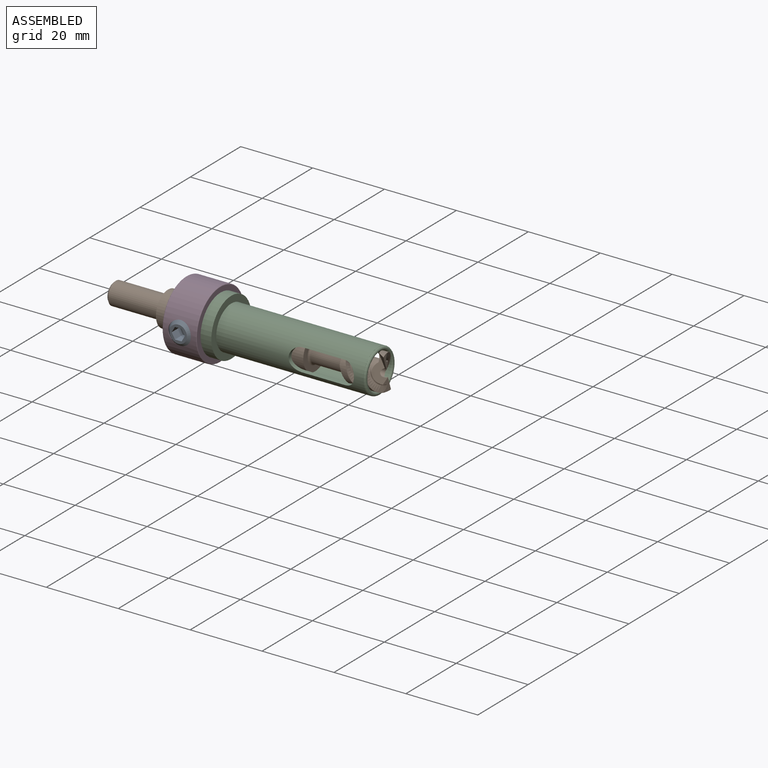
[diagram: assembled view]
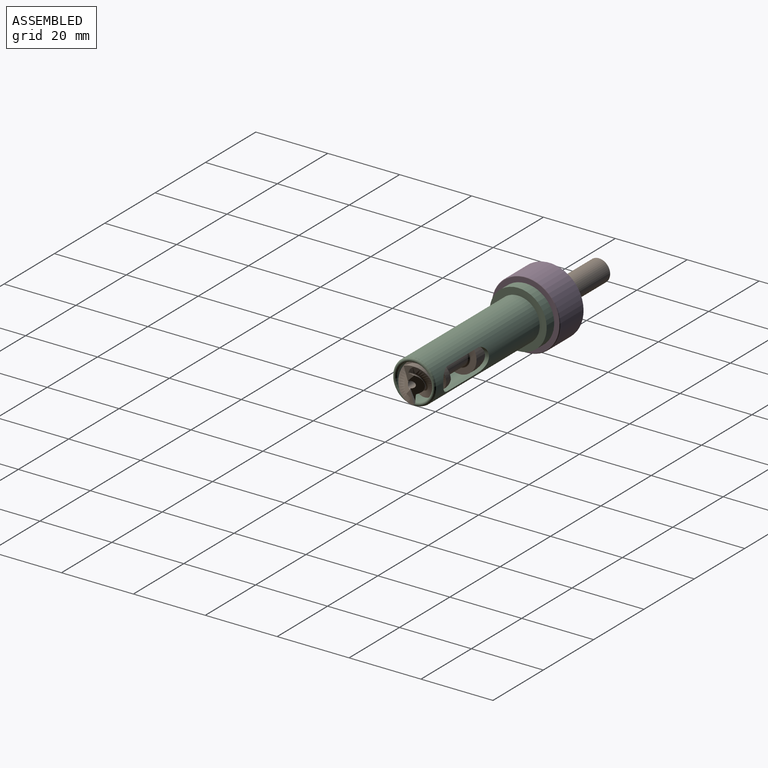
[diagram: assembled view, second angle]
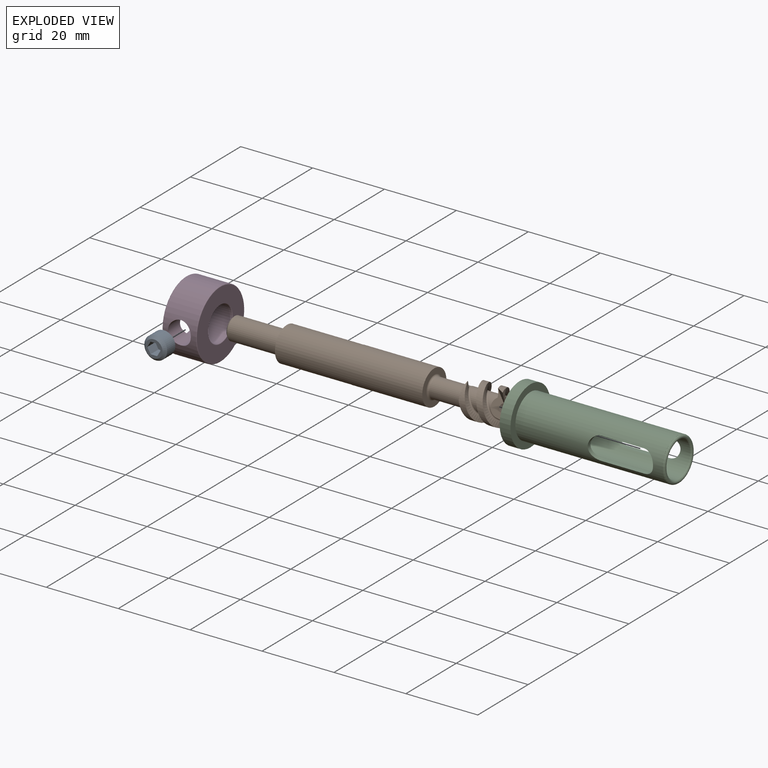
[diagram: exploded view]
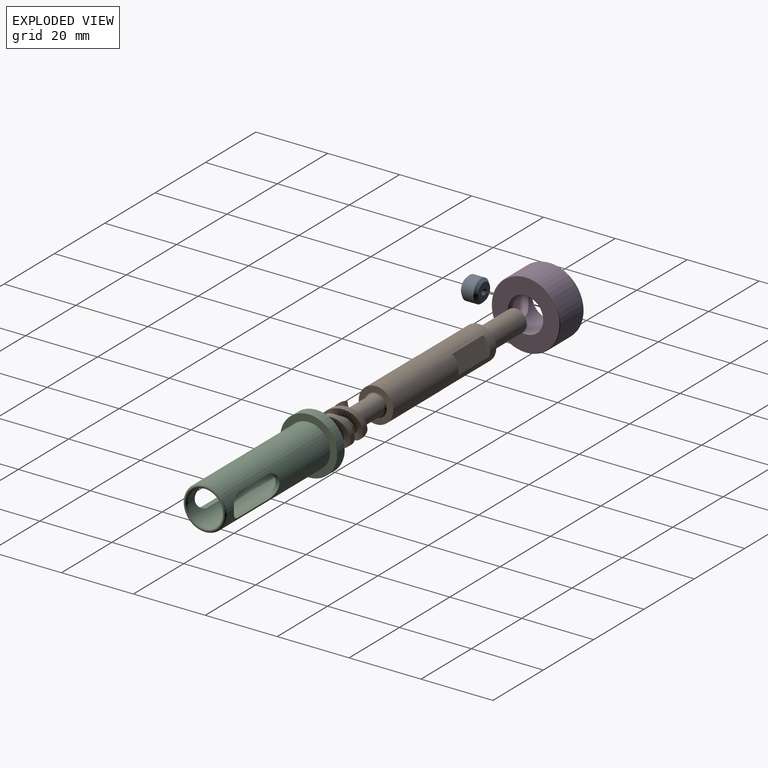
[diagram: exploded view, second angle]
ASSEMBLY  parts=4 mates=5
PART A: 13 faces, bbox 6.4x4.8x6.4 mm
  f0: plane 4.82x4.82mm, normal (0,1,0), area 9.5mm2, adj f1,f6,f7,f8,f9,f10,f11
  f1: cone r=2.41mm half-angle=45deg, axis (0,-1,0), area 19mm2, adj f0,f2
  f2: cylinder r=3.17mm len=6.35mm, axis (0,1,0), area 64.4mm2, adj f1,f3
  f3: cone r=3.17mm half-angle=45deg, axis (0,1,0), area 19mm2, adj f2,f4
  f4: plane 4.82x4.82mm, normal (0,-1,0), area 15.6mm2, adj f3,f5
  f5: cone r=0.92mm half-angle=45deg, axis (0,-1,0), area 3.8mm2, adj f4
  f6: plane 3.18x1.59mm, normal (-0.87,0,0.5), area 5.8mm2, adj f0,f7,f11,f12
  f7: plane 3.18x1.59mm, normal (-0.87,0,-0.5), area 5.8mm2, adj f0,f6,f8,f12
  f8: plane 3.18x1.83mm, normal (0,0,-1), area 5.8mm2, adj f0,f7,f9,f12
  f9: plane 3.18x1.59mm, normal (0.87,0,-0.5), area 5.8mm2, adj f0,f8,f10,f12
  f10: plane 3.18x1.59mm, normal (0.87,0,0.5), area 5.8mm2, adj f0,f9,f11,f12
  f11: plane 3.18x1.83mm, normal (0,0,1), area 5.8mm2, adj f0,f6,f10,f12
  f12: plane 3.67x3.18mm, normal (0,1,0), area 8.7mm2, adj f6,f7,f8,f9,f10,f11
PART B: 71 faces, bbox 77.1x9.8x9.8 mm
  f0: cylinder r=4.8mm len=21mm, axis (-1,0,0), area 633.3mm2, adj f22,f30
  f1: plane 9.53x9.53mm, normal (-1,0,0), area 41.2mm2, adj f14,f31
  f2: cylinder r=1.07mm len=75.99mm, axis (-1,0,0), area 507mm2, adj f3,f6,f13,f25,f26,f27
  f3: cylinder r=1.07mm len=0.54mm, axis (-1,0,0), area 0.1mm2, adj f2,f25,f26
  f4: cylinder r=4.8mm len=10mm, axis (-1,0,0), area 49.3mm2, adj f5,f9,f20,f27,f28
  f5: bspline ~10x9.6mm, area 37.8mm2, adj f4,f16,f20,f21,f26,f27
  f6: plane 7.2x3.17mm, normal (0.82,-0.53,0.23), area 12.6mm2, adj f2,f8,f11,f17,f25,f27,f28
  f7: cylinder r=4.8mm len=10mm, axis (-1,0,0), area 49.3mm2, adj f8,f10,f19,f25,f29
  f8: bspline ~10x9.6mm, area 37.8mm2, adj f6,f7,f17,f19,f21,f25
  f9: bspline ~11.25x9.6mm, area 44.9mm2, adj f4,f18,f20,f21,f28
  f10: bspline ~11.25x9.6mm, area 44.9mm2, adj f7,f15,f19,f21,f29
  f11: cylinder r=2.8mm len=9.83mm, axis (-1,0,0), area 37mm2, adj f6,f17,f18,f21,f28
  f12: cylinder r=2.8mm len=9.83mm, axis (-1,0,0), area 37mm2, adj f15,f16,f21,f26,f29
  f13: plane 5.2x5.2mm, normal (-1,0,0), area 17.6mm2, adj f2,f70
  f14: cylinder r=3.1mm len=14.5mm, axis (-1,0,0), area 282.4mm2, adj f1,f70
  f15: bspline ~10.75x6.1mm, area 7.9mm2, adj f10,f12,f21,f29
  f16: bspline ~9.11x6.1mm, area 6.7mm2, adj f5,f12,f21,f26
  f17: bspline ~9.11x6.1mm, area 6.7mm2, adj f6,f8,f11,f21
  f18: bspline ~10.75x6.1mm, area 7.9mm2, adj f9,f11,f21,f28
  f19: plane 4.02x3.92mm, normal (-1,0,0), area 7.2mm2, adj f7,f8,f10,f21
  f20: plane 4.02x3.92mm, normal (-1,0,0), area 7.2mm2, adj f4,f5,f9,f21
  f21: torus R=3.2mm, axis (1,0,0), area 8.9mm2, adj f5,f8,f9,f10,f11,f12,f15,f16
  f22: plane 9.6x9.6mm, normal (1,0,0), area 40.2mm2, adj f0,f23
  f23: torus R=3.2mm, axis (1,0,0), area 14.2mm2, adj f22,f24
  f24: cylinder r=2.7mm len=9mm, axis (1,0,0), area 152.7mm2, adj f21,f23
  f25: plane 3.76x2.01mm, normal (-0.47,-0.84,-0.28), area 6mm2, adj f2,f3,f6,f7,f8,f26,f29
  f26: plane 7.2x3.17mm, normal (0.82,0.53,-0.23), area 12.6mm2, adj f2,f3,f5,f12,f16,f25,f27,f29
  f27: plane 3.76x2.01mm, normal (-0.47,0.84,0.28), area 6mm2, adj f2,f4,f5,f6,f26,f28
  f28: plane 3.92x2.74mm, normal (0.97,-0.25,-0.08), area 4.5mm2, adj f4,f6,f9,f11,f18,f27
  f29: plane 3.92x2.74mm, normal (0.97,0.25,0.08), area 4.5mm2, adj f7,f10,f12,f15,f25,f26
  f30: plane 9.6x9.6mm, normal (-1,0,0), area 1mm2, adj f0,f31
  f31: cylinder r=4.77mm len=20mm, axis (1,0,0), area 530mm2, adj f1,f30,f32,f33,f34,f35,f36,f37
  f32: plane 12.35x4.92mm, normal (0,0.95,0.32), area 64mm2, adj f31,f33,f34
  f33: plane 4.92x1.8mm, normal (-1,0,0), area 2.7mm2, adj f31,f32
  f34: plane 4.92x1.8mm, normal (1,0,0), area 2.7mm2, adj f31,f32
  f35: plane 2.93x2.78mm, normal (1,0,0), area 0.1mm2, adj f31,f37,f38,f39
  f36: plane 2.93x2.78mm, normal (-1,0,0), area 0.1mm2, adj f31,f37,f38,f39
  f37: plane 0.05x0.02mm, normal (0,-0.37,-0.93), area 0mm2, adj f31,f35,f36,f39
  f38: plane 0.05x0.02mm, normal (0,0.95,0.32), area 0mm2, adj f31,f35,f36,f39
  f39: cylinder r=4.75mm len=2.91mm, axis (-1,0,0), area 0.2mm2, adj f35,f36,f37,f38
  f40: plane 2.93x2.78mm, normal (1,0,0), area 0.1mm2, adj f31,f42,f43,f44
  f41: plane 2.93x2.78mm, normal (-1,0,0), area 0.1mm2, adj f31,f42,f43,f44
  f42: plane 0.05x0.02mm, normal (0,-0.37,-0.93), area 0mm2, adj f31,f40,f41,f44
  f43: plane 0.05x0.02mm, normal (0,0.95,0.32), area 0mm2, adj f31,f40,f41,f44
  f44: cylinder r=4.75mm len=2.91mm, axis (-1,0,0), area 0.2mm2, adj f40,f41,f42,f43
  f45: plane 2.93x2.78mm, normal (1,0,0), area 0.1mm2, adj f31,f47,f48,f49
  f46: plane 2.93x2.78mm, normal (-1,0,0), area 0.1mm2, adj f31,f47,f48,f49
  f47: plane 0.05x0.02mm, normal (0,-0.37,-0.93), area 0mm2, adj f31,f45,f46,f49
  f48: plane 0.05x0.02mm, normal (0,0.95,0.32), area 0mm2, adj f31,f45,f46,f49
  f49: cylinder r=4.75mm len=2.91mm, axis (-1,0,0), area 0.2mm2, adj f45,f46,f47,f48
  f50: plane 2.93x2.78mm, normal (1,0,0), area 0.1mm2, adj f31,f52,f53,f54
  f51: plane 2.93x2.78mm, normal (-1,0,0), area 0.1mm2, adj f31,f52,f53,f54
  f52: plane 0.05x0.02mm, normal (0,-0.37,-0.93), area 0mm2, adj f31,f50,f51,f54
  f53: plane 0.05x0.02mm, normal (0,0.95,0.32), area 0mm2, adj f31,f50,f51,f54
  f54: cylinder r=4.75mm len=2.91mm, axis (-1,0,0), area 0.2mm2, adj f50,f51,f52,f53
  f55: plane 2.37x2.25mm, normal (1,0,0), area 0.1mm2, adj f31,f57,f58,f59
  f56: plane 2.37x2.25mm, normal (-1,0,0), area 0.1mm2, adj f31,f57,f58,f59
  f57: plane 0.05x0.02mm, normal (0,-0.45,-0.89), area 0mm2, adj f31,f55,f56,f59
  f58: plane 0.05x0.02mm, normal (0,0.92,0.4), area 0mm2, adj f31,f55,f56,f59
  f59: cylinder r=4.75mm len=2.36mm, axis (-1,0,0), area 0.2mm2, adj f55,f56,f57,f58
  f60: plane 2.37x2.25mm, normal (1,0,0), area 0.1mm2, adj f31,f62,f63,f64
  f61: plane 2.37x2.25mm, normal (-1,0,0), area 0.1mm2, adj f31,f62,f63,f64
  f62: plane 0.05x0.02mm, normal (0,-0.45,-0.89), area 0mm2, adj f31,f60,f61,f64
  f63: plane 0.05x0.02mm, normal (0,0.92,0.4), area 0mm2, adj f31,f60,f61,f64
  f64: cylinder r=4.75mm len=2.36mm, axis (-1,0,0), area 0.2mm2, adj f60,f61,f62,f63
  f65: plane 2.37x2.25mm, normal (1,0,0), area 0.1mm2, adj f31,f67,f68,f69
  f66: plane 2.37x2.25mm, normal (-1,0,0), area 0.1mm2, adj f31,f67,f68,f69
  f67: plane 0.05x0.02mm, normal (0,-0.45,-0.89), area 0mm2, adj f31,f65,f66,f69
  f68: plane 0.05x0.02mm, normal (0,0.92,0.4), area 0mm2, adj f31,f65,f66,f69
  f69: cylinder r=4.75mm len=2.36mm, axis (-1,0,0), area 0.2mm2, adj f65,f66,f67,f68
  f70: cone r=2.6mm half-angle=45deg, axis (1,0,0), area 12.7mm2, adj f13,f14
PART C: 15 faces, bbox 44.5x15.9x15.9 mm
  f0: plane 15.88x15.88mm, normal (-1,0,0), area 122.8mm2, adj f1,f2
  f1: cylinder r=7.94mm len=15.88mm, axis (-1,0,0), area 149.6mm2, adj f0,f4
  f2: cylinder r=4.89mm len=44.03mm, axis (-1,0,0), area 1121.8mm2, adj f0,f5,f6,f7,f8,f9,f10,f11
  f3: cylinder r=6mm len=40.93mm, axis (1,0,0), area 1318.9mm2, adj f4,f5,f6,f7,f8,f9,f10,f11
  f4: plane 15.88x15.88mm, normal (1,0,0), area 84.8mm2, adj f1,f3
  f5: cylinder r=3.17mm len=6.35mm, axis (0,1,0), area 12.3mm2, adj f2,f3,f6,f8
  f6: plane 11.83x1.37mm, normal (0,0,1), area 16.2mm2, adj f2,f3,f5,f7
  f7: cylinder r=3.17mm len=6.35mm, axis (0,1,0), area 12.3mm2, adj f2,f3,f6,f8
  f8: plane 11.83x1.37mm, normal (0,0,-1), area 16.2mm2, adj f2,f3,f5,f7
  f9: plane 11.83x1.37mm, normal (0,0,-1), area 16.2mm2, adj f2,f3,f10,f12
  f10: cylinder r=3.17mm len=6.35mm, axis (0,1,0), area 12.3mm2, adj f2,f3,f9,f11
  f11: plane 11.83x1.37mm, normal (0,0,1), area 16.2mm2, adj f2,f3,f10,f12
  f12: cylinder r=3.17mm len=6.35mm, axis (0,1,0), area 12.3mm2, adj f2,f3,f9,f11
  f13: torus R=5.43mm, axis (1,0,0), area 55.9mm2, adj f2,f14
  f14: plane 12x12mm, normal (1,0,0), area 0.7mm2, adj f3,f13
PART D: 9 faces, bbox 20.6x20.6x9.5 mm
  f0: plane 18.67x18.67mm, normal (0,0,1), area 196.7mm2, adj f6,f8
  f1: plane 18.67x18.67mm, normal (0,0,-1), area 196.7mm2, adj f5,f7
  f2: cylinder r=9.53mm len=19.05mm, axis (0,0,-1), area 515.2mm2, adj f4,f7,f8
  f3: cylinder r=4.76mm len=9.53mm, axis (0,0,-1), area 239.8mm2, adj f4,f5,f6
  f4: cylinder r=3.17mm len=6.35mm, axis (0,-1,0), area 101.3mm2, adj f2,f3
  f5: torus R=4.95mm, axis (0,0,1), area 9.1mm2, adj f1,f3
  f6: torus R=4.95mm, axis (0,0,1), area 9.1mm2, adj f0,f3
  f7: torus R=9.33mm, axis (0,0,1), area 17.8mm2, adj f1,f2
  f8: torus R=9.33mm, axis (0,0,1), area 17.8mm2, adj f0,f2
PLACE A rot(axis=(-1,0,0),180deg) t=(19.57,-20.34,-5.31)mm
PLACE B rot(axis=(0.92,-0.06,-0.4),0deg) t=(7.21,-19.88,-5.31)mm
PLACE C rot(axis=(0.92,-0.06,-0.4),0deg) t=(47.01,-19.88,-5.31)mm
PLACE D rot(axis=(-0.71,0,0.71),180deg) t=(19.57,-19.88,-5.31)mm
MATE slider A.f2 <-> D.f4  axis (0,-1,0) through (19.57,-29.1,-5.31)mm
MATE slider C.f1 <-> B.f0  axis (-1,0,0) through (24.33,-19.88,-5.31)mm
MATE fastened C.f1 <-> D.f2  axis (-1,0,0) through (24.33,-19.88,-5.31)mm
MATE planar B.f0 <-> D.f2  axis (-1,0,0) through (9.71,-19.88,-5.31)mm
MATE cylindrical D.f2 <-> B.f0  axis (1,0,0) through (24.14,-19.88,-5.31)mm
